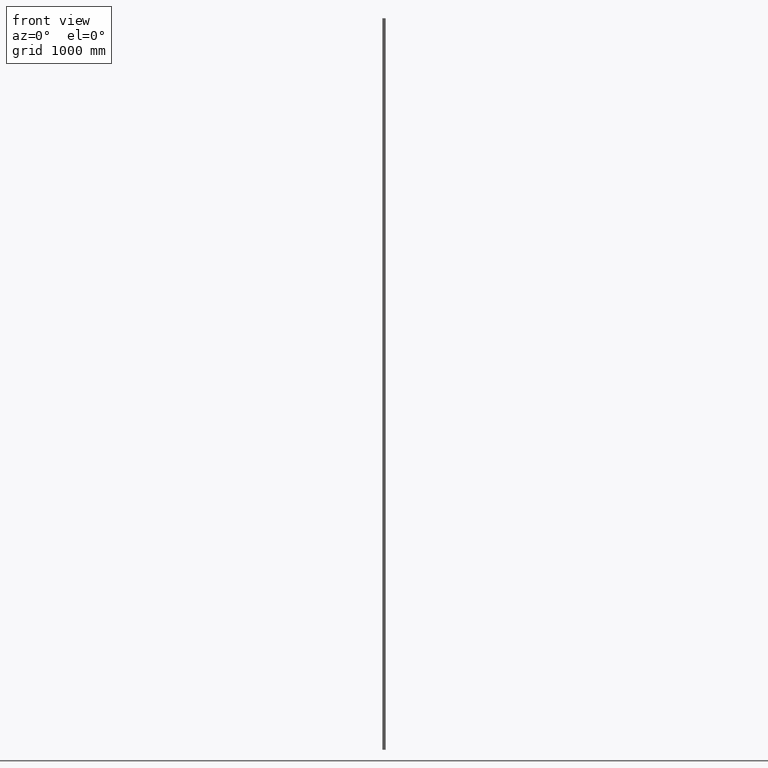
[diagram: clean part render]
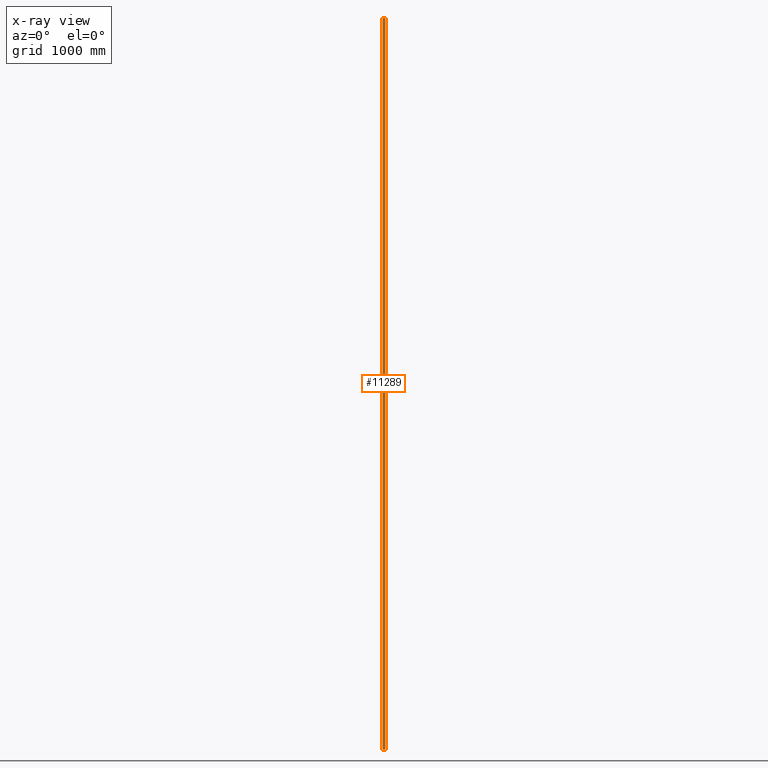
[diagram: x-ray — body ghosted, one internal face saturated and labeled with its STEP entity id]
A machine part, front view, then the same camera in x-ray: the body is ghosted and one INTERNAL B-rep face — a face not visible from any outside direction — is saturated and labeled: STEP entity #11289.
In plain terms, the highlighted planar face has unit normal (0, 1, -0).
Its self-contained STEP definition (entity closure, byte-faithful):
#21 = VECTOR ( 'NONE', #13515, 1000.000000000000000 ) ;
#23 = DIRECTION ( 'NONE',  ( -0.0000000000000000000, -0.0000000000000000000, -1.000000000000000000 ) ) ;
#67 = EDGE_CURVE ( 'NONE', #6154, #7932, #10568, .T. ) ;
#80 = VERTEX_POINT ( 'NONE', #4792 ) ;
#176 = VECTOR ( 'NONE', #13785, 1000.000000000000000 ) ;
#218 = ORIENTED_EDGE ( 'NONE', *, *, #354, .T. ) ;
#272 = EDGE_CURVE ( 'NONE', #5588, #6484, #5208, .T. ) ;
#302 = CARTESIAN_POINT ( 'NONE',  ( -11.00000000000000200, 10.00000000000000200, 3000.000000000000000 ) ) ;
#329 = EDGE_CURVE ( 'NONE', #6880, #2387, #4014, .T. ) ;
#342 = DIRECTION ( 'NONE',  ( -0.0000000000000000000, -0.0000000000000000000, -1.000000000000000000 ) ) ;
#354 = EDGE_CURVE ( 'NONE', #13557, #14191, #6994, .T. ) ;
#418 = CARTESIAN_POINT ( 'NONE',  ( -11.00000000000000200, 10.00000000000000200, 3000.000000000000000 ) ) ;
#436 = CARTESIAN_POINT ( 'NONE',  ( -11.00000000000000200, 10.00000000000000200, 5.670638757203860800 ) ) ;
#483 = ORIENTED_EDGE ( 'NONE', *, *, #8315, .T. ) ;
#486 = LINE ( 'NONE', #16308, #2094 ) ;
#490 = LINE ( 'NONE', #15507, #13660 ) ;
#521 = EDGE_CURVE ( 'NONE', #10795, #3374, #12942, .T. ) ;
#577 = VECTOR ( 'NONE', #14989, 1000.000000000000000 ) ;
#592 = ORIENTED_EDGE ( 'NONE', *, *, #272, .T. ) ;
#603 = ORIENTED_EDGE ( 'NONE', *, *, #13868, .T. ) ;
#606 = DIRECTION ( 'NONE',  ( -0.0000000000000000000, -0.0000000000000000000, -1.000000000000000000 ) ) ;
#655 = CARTESIAN_POINT ( 'NONE',  ( -11.00000000000000200, 10.00000000000000200, 3000.000000000000000 ) ) ;
#676 = DIRECTION ( 'NONE',  ( -0.0000000000000000000, -0.0000000000000000000, -1.000000000000000000 ) ) ;
#681 = DIRECTION ( 'NONE',  ( -0.0000000000000000000, -0.0000000000000000000, -1.000000000000000000 ) ) ;
#696 = VECTOR ( 'NONE', #13924, 1000.000000000000000 ) ;
#709 = VECTOR ( 'NONE', #676, 1000.000000000000000 ) ;
#715 = EDGE_CURVE ( 'NONE', #5347, #8253, #4799, .T. ) ;
#745 = CARTESIAN_POINT ( 'NONE',  ( -11.00000000000000200, 10.00000000000000200, 0.7927559264526706800 ) ) ;
#767 = LINE ( 'NONE', #15841, #13115 ) ;
#782 = ORIENTED_EDGE ( 'NONE', *, *, #11261, .T. ) ;
#816 = EDGE_CURVE ( 'NONE', #7379, #9759, #2781, .T. ) ;
#862 = VECTOR ( 'NONE', #4327, 1000.000000000000000 ) ;
#865 = ORIENTED_EDGE ( 'NONE', *, *, #13939, .T. ) ;
#899 = ORIENTED_EDGE ( 'NONE', *, *, #9029, .T. ) ;
#911 = VECTOR ( 'NONE', #13827, 1000.000000000000000 ) ;
#977 = VECTOR ( 'NONE', #5534, 1000.000000000000000 ) ;
#979 = CARTESIAN_POINT ( 'NONE',  ( -11.00000000000000200, 10.00000000000000200, -3.301537906800877700 ) ) ;
#987 = DIRECTION ( 'NONE',  ( -0.0000000000000000000, -0.0000000000000000000, -1.000000000000000000 ) ) ;
#1043 = ORIENTED_EDGE ( 'NONE', *, *, #13290, .T. ) ;
#1064 = DIRECTION ( 'NONE',  ( -0.0000000000000000000, -0.0000000000000000000, -1.000000000000000000 ) ) ;
#1080 = LINE ( 'NONE', #13594, #1446 ) ;
#1091 = CARTESIAN_POINT ( 'NONE',  ( -11.00000000000000000, 10.00000000000000200, -1.967414529914399500 ) ) ;
#1099 = LINE ( 'NONE', #8083, #6323 ) ;
#1141 = CARTESIAN_POINT ( 'NONE',  ( -11.00000000000000000, 9.999999992416315200, -8.490377042834694500 ) ) ;
#1159 = EDGE_CURVE ( 'NONE', #3374, #15918, #8598, .T. ) ;
#1205 = DIRECTION ( 'NONE',  ( -0.0000000000000000000, -0.0000000000000000000, -1.000000000000000000 ) ) ;
#1208 = CARTESIAN_POINT ( 'NONE',  ( -11.00000000000000000, 10.00000000280208400, 3.433896535137742800 ) ) ;
#1246 = VERTEX_POINT ( 'NONE', #9790 ) ;
#1277 = CARTESIAN_POINT ( 'NONE',  ( -11.00000000000000200, 10.00000000000000200, 3.302053977773944400 ) ) ;
#1283 = EDGE_CURVE ( 'NONE', #2947, #4386, #14148, .T. ) ;
#1292 = VERTEX_POINT ( 'NONE', #9618 ) ;
#1299 = VECTOR ( 'NONE', #6560, 1000.000000000000000 ) ;
#1340 = ORIENTED_EDGE ( 'NONE', *, *, #6010, .T. ) ;
#1368 = CARTESIAN_POINT ( 'NONE',  ( -11.00000000000000200, 10.00000000000000200, 3000.000000000000000 ) ) ;
#1372 = VECTOR ( 'NONE', #15347, 1000.000000000000000 ) ;
#1387 = VECTOR ( 'NONE', #3432, 1000.000000000000000 ) ;
#1400 = EDGE_CURVE ( 'NONE', #2862, #13713, #8976, .T. ) ;
#1404 = ORIENTED_EDGE ( 'NONE', *, *, #3571, .T. ) ;
#1446 = VECTOR ( 'NONE', #9735, 1000.000000000000000 ) ;
#1471 = LINE ( 'NONE', #14575, #14244 ) ;
#1505 = VECTOR ( 'NONE', #987, 1000.000000000000000 ) ;
#1512 = EDGE_CURVE ( 'NONE', #2452, #9471, #767, .T. ) ;
#1532 = VECTOR ( 'NONE', #1986, 1000.000000000000000 ) ;
#1535 = EDGE_CURVE ( 'NONE', #9944, #11347, #15745, .T. ) ;
#1549 = VERTEX_POINT ( 'NONE', #10915 ) ;
#1554 = LINE ( 'NONE', #11174, #176 ) ;
#1590 = DIRECTION ( 'NONE',  ( -0.0000000000000000000, -0.0000000000000000000, -1.000000000000000000 ) ) ;
#1626 = DIRECTION ( 'NONE',  ( -0.0000000000000000000, -0.0000000000000000000, -1.000000000000000000 ) ) ;
#1627 = VERTEX_POINT ( 'NONE', #4224 ) ;
#1723 = DIRECTION ( 'NONE',  ( -0.0000000000000000000, -0.0000000000000000000, -1.000000000000000000 ) ) ;
#1778 = CARTESIAN_POINT ( 'NONE',  ( -11.00000000000000200, 10.00000000000000200, 3000.000000000000000 ) ) ;
#1835 = CARTESIAN_POINT ( 'NONE',  ( -11.00000000000000200, 10.00000000000000200, 3000.000000000000000 ) ) ;
#1856 = ORIENTED_EDGE ( 'NONE', *, *, #2262, .T. ) ;
#1857 = CARTESIAN_POINT ( 'NONE',  ( 11.00000000000000000, 10.00000000000000000, 3000.000000000000000 ) ) ;
#1971 = LINE ( 'NONE', #4953, #577 ) ;
#1986 = DIRECTION ( 'NONE',  ( -0.0000000000000000000, -0.0000000000000000000, -1.000000000000000000 ) ) ;
#2049 = CARTESIAN_POINT ( 'NONE',  ( -11.00000000000000200, 10.00000000000000200, 3000.000000000000000 ) ) ;
#2094 = VECTOR ( 'NONE', #4762, 1000.000000000000000 ) ;
#2097 = DIRECTION ( 'NONE',  ( -0.0000000000000000000, -0.0000000000000000000, -1.000000000000000000 ) ) ;
#2114 = LINE ( 'NONE', #2238, #15493 ) ;
#2229 = VERTEX_POINT ( 'NONE', #5189 ) ;
#2238 = CARTESIAN_POINT ( 'NONE',  ( -11.00000000000000200, 10.00000000000000200, 3000.000000000000000 ) ) ;
#2262 = EDGE_CURVE ( 'NONE', #4044, #10014, #4804, .T. ) ;
#2265 = EDGE_LOOP ( 'NONE', ( #6449, #2811, #12595, #5319, #6906, #16397, #10871, #2654, #16353, #3841, #865, #218, #7523, #6090, #16083, #6166, #2583, #14540, #13190, #12993, #14163, #4977, #603, #8875, #9230, #15640, #11493, #7711, #10101, #1856, #9554, #4882, #11535, #4156, #15132, #15537, #1340, #11881, #14022, #14762, #6638, #3326, #6646, #15377, #10103, #11588, #899, #11421, #5304, #14958, #12049, #15727, #15790, #11894, #1404, #6457, #10736, #5432, #592, #483, #5458, #1043, #8556, #4786, #782, #12439 ) ) ;
#2283 = CARTESIAN_POINT ( 'NONE',  ( -11.00000000000000200, 10.00000000000000200, 3000.000000000000000 ) ) ;
#2291 = EDGE_CURVE ( 'NONE', #7229, #1627, #9166, .T. ) ;
#2387 = VERTEX_POINT ( 'NONE', #4432 ) ;
#2414 = VERTEX_POINT ( 'NONE', #3038 ) ;
#2436 = DIRECTION ( 'NONE',  ( -0.0000000000000000000, -0.0000000000000000000, -1.000000000000000000 ) ) ;
#2452 = VERTEX_POINT ( 'NONE', #11925 ) ;
#2488 = PLANE ( 'NONE',  #11719 ) ;
#2489 = EDGE_CURVE ( 'NONE', #14416, #15683, #3606, .T. ) ;
#2583 = ORIENTED_EDGE ( 'NONE', *, *, #715, .T. ) ;
#2611 = EDGE_CURVE ( 'NONE', #8833, #3993, #1971, .T. ) ;
#2632 = EDGE_CURVE ( 'NONE', #1292, #14140, #1554, .T. ) ;
#2654 = ORIENTED_EDGE ( 'NONE', *, *, #6302, .T. ) ;
#2680 = VERTEX_POINT ( 'NONE', #16301 ) ;
#2733 = EDGE_CURVE ( 'NONE', #14311, #15828, #4930, .T. ) ;
#2781 = LINE ( 'NONE', #14040, #1372 ) ;
#2789 = EDGE_CURVE ( 'NONE', #2387, #1246, #14469, .T. ) ;
#2811 = ORIENTED_EDGE ( 'NONE', *, *, #11110, .F. ) ;
#2822 = DIRECTION ( 'NONE',  ( -0.0000000000000000000, -0.0000000000000000000, -1.000000000000000000 ) ) ;
#2862 = VERTEX_POINT ( 'NONE', #745 ) ;
#2894 = LINE ( 'NONE', #15892, #15679 ) ;
#2927 = VECTOR ( 'NONE', #5201, 1000.000000000000000 ) ;
#2947 = VERTEX_POINT ( 'NONE', #14884 ) ;
#2979 = VERTEX_POINT ( 'NONE', #13685 ) ;
#3038 = CARTESIAN_POINT ( 'NONE',  ( -11.00000000000000000, 10.00000000000000900, 5.181919648641740000 ) ) ;
#3246 = VECTOR ( 'NONE', #9703, 1000.000000000000000 ) ;
#3266 = CARTESIAN_POINT ( 'NONE',  ( -11.00000000000000000, 10.00000000280207900, 2.314505509497168500 ) ) ;
#3269 = DIRECTION ( 'NONE',  ( -0.0000000000000000000, -0.0000000000000000000, -1.000000000000000000 ) ) ;
#3287 = CARTESIAN_POINT ( 'NONE',  ( -11.00000000000000000, 10.00000000000000200, 10.75293803418808400 ) ) ;
#3326 = ORIENTED_EDGE ( 'NONE', *, *, #9129, .T. ) ;
#3374 = VERTEX_POINT ( 'NONE', #16013 ) ;
#3432 = DIRECTION ( 'NONE',  ( -0.0000000000000000000, -0.0000000000000000000, -1.000000000000000000 ) ) ;
#3458 = CARTESIAN_POINT ( 'NONE',  ( -11.00000000000000000, 10.00000000000000200, -7.326923076923437300 ) ) ;
#3543 = EDGE_CURVE ( 'NONE', #5073, #10795, #490, .T. ) ;
#3571 = EDGE_CURVE ( 'NONE', #7443, #9944, #11270, .T. ) ;
#3606 = LINE ( 'NONE', #5738, #15185 ) ;
#3702 = VERTEX_POINT ( 'NONE', #13110 ) ;
#3800 = DIRECTION ( 'NONE',  ( -1.000000000000000000, 7.885106708985486600E-017, 0.0000000000000000000 ) ) ;
#3830 = DIRECTION ( 'NONE',  ( -0.0000000000000000000, -0.0000000000000000000, -1.000000000000000000 ) ) ;
#3841 = ORIENTED_EDGE ( 'NONE', *, *, #15286, .T. ) ;
#3869 = DIRECTION ( 'NONE',  ( -0.0000000000000000000, -0.0000000000000000000, -1.000000000000000000 ) ) ;
#3933 = CARTESIAN_POINT ( 'NONE',  ( 11.00000000000000000, 10.00000000000000000, -3000.000000000000000 ) ) ;
#3943 = CARTESIAN_POINT ( 'NONE',  ( -11.00000000000000200, 10.00000000000000200, 3000.000000000000000 ) ) ;
#3980 = EDGE_CURVE ( 'NONE', #1627, #8473, #1471, .T. ) ;
#3993 = VERTEX_POINT ( 'NONE', #3266 ) ;
#4014 = LINE ( 'NONE', #14347, #13765 ) ;
#4018 = EDGE_CURVE ( 'NONE', #2229, #7859, #10841, .T. ) ;
#4044 = VERTEX_POINT ( 'NONE', #1277 ) ;
#4069 = DIRECTION ( 'NONE',  ( -0.0000000000000000000, -0.0000000000000000000, -1.000000000000000000 ) ) ;
#4156 = ORIENTED_EDGE ( 'NONE', *, *, #15130, .T. ) ;
#4211 = CARTESIAN_POINT ( 'NONE',  ( -11.00000000000000200, 10.00000000000000200, 3000.000000000000000 ) ) ;
#4219 = CARTESIAN_POINT ( 'NONE',  ( -11.00000000000000000, 9.999999990482573200, 9.864725582880886600 ) ) ;
#4224 = CARTESIAN_POINT ( 'NONE',  ( -11.00000000000000000, 10.00000000000000200, 4.121394230769212200 ) ) ;
#4273 = CARTESIAN_POINT ( 'NONE',  ( -11.00000000000000200, 10.00000000000000200, 3000.000000000000000 ) ) ;
#4293 = LINE ( 'NONE', #9523, #16479 ) ;
#4327 = DIRECTION ( 'NONE',  ( -0.0000000000000000000, -0.0000000000000000000, -1.000000000000000000 ) ) ;
#4339 = CARTESIAN_POINT ( 'NONE',  ( -11.00000000000000000, 10.00000000000000200, 3.002003205128642300 ) ) ;
#4355 = LINE ( 'NONE', #7252, #8964 ) ;
#4386 = VERTEX_POINT ( 'NONE', #15270 ) ;
#4394 = DIRECTION ( 'NONE',  ( -0.0000000000000000000, -0.0000000000000000000, -1.000000000000000000 ) ) ;
#4432 = CARTESIAN_POINT ( 'NONE',  ( -11.00000000000000200, 10.00000000000000200, 6.229181438967224000 ) ) ;
#4485 = CARTESIAN_POINT ( 'NONE',  ( -11.00000000000000200, 10.00000000000000200, -3000.000000000000000 ) ) ;
#4580 = DIRECTION ( 'NONE',  ( -0.0000000000000000000, -0.0000000000000000000, -1.000000000000000000 ) ) ;
#4596 = CARTESIAN_POINT ( 'NONE',  ( -11.00000000000000200, 10.00000000000000200, 3000.000000000000000 ) ) ;
#4705 = LINE ( 'NONE', #12759, #15676 ) ;
#4736 = CARTESIAN_POINT ( 'NONE',  ( -11.00000000000000000, 10.00000000000000500, -10.60172148674717200 ) ) ;
#4762 = DIRECTION ( 'NONE',  ( -0.0000000000000000000, -0.0000000000000000000, -1.000000000000000000 ) ) ;
#4777 = EDGE_CURVE ( 'NONE', #15918, #14385, #6675, .T. ) ;
#4786 = ORIENTED_EDGE ( 'NONE', *, *, #13418, .T. ) ;
#4792 = CARTESIAN_POINT ( 'NONE',  ( -11.00000000000013300, 10.00000000000003000, -0.7474626068373763100 ) ) ;
#4799 = LINE ( 'NONE', #14608, #977 ) ;
#4804 = LINE ( 'NONE', #6680, #10748 ) ;
#4882 = ORIENTED_EDGE ( 'NONE', *, *, #2611, .T. ) ;
#4890 = VECTOR ( 'NONE', #23, 1000.000000000000000 ) ;
#4930 = LINE ( 'NONE', #6265, #1505 ) ;
#4953 = CARTESIAN_POINT ( 'NONE',  ( -11.00000000000000200, 10.00000000000000200, 3000.000000000000000 ) ) ;
#4967 = DIRECTION ( 'NONE',  ( 7.885106708985486600E-017, 1.000000000000000000, -0.0000000000000000000 ) ) ;
#4977 = ORIENTED_EDGE ( 'NONE', *, *, #2733, .T. ) ;
#4991 = CARTESIAN_POINT ( 'NONE',  ( -11.00000000000000200, 10.00000000000000200, 6.889913462366781300 ) ) ;
#5073 = VERTEX_POINT ( 'NONE', #1091 ) ;
#5109 = VECTOR ( 'NONE', #9329, 1000.000000000000000 ) ;
#5139 = CARTESIAN_POINT ( 'NONE',  ( -11.00000000000000200, 10.00000000000000200, 3000.000000000000000 ) ) ;
#5155 = LINE ( 'NONE', #13915, #10705 ) ;
#5189 = CARTESIAN_POINT ( 'NONE',  ( -11.00000000000000000, 9.999999999999927200, 7.587134794171227300 ) ) ;
#5201 = DIRECTION ( 'NONE',  ( -0.0000000000000000000, -0.0000000000000000000, -1.000000000000000000 ) ) ;
#5208 = LINE ( 'NONE', #11592, #6591 ) ;
#5304 = ORIENTED_EDGE ( 'NONE', *, *, #1283, .T. ) ;
#5316 = VECTOR ( 'NONE', #3869, 1000.000000000000000 ) ;
#5319 = ORIENTED_EDGE ( 'NONE', *, *, #12162, .T. ) ;
#5347 = VERTEX_POINT ( 'NONE', #5801 ) ;
#5356 = FACE_OUTER_BOUND ( 'NONE', #2265, .T. ) ;
#5432 = ORIENTED_EDGE ( 'NONE', *, *, #9737, .T. ) ;
#5458 = ORIENTED_EDGE ( 'NONE', *, *, #15881, .T. ) ;
#5482 = VECTOR ( 'NONE', #7957, 1000.000000000000000 ) ;
#5534 = DIRECTION ( 'NONE',  ( -0.0000000000000000000, -0.0000000000000000000, -1.000000000000000000 ) ) ;
#5588 = VERTEX_POINT ( 'NONE', #14976 ) ;
#5690 = CARTESIAN_POINT ( 'NONE',  ( -11.00000000000000200, 10.00000000000000200, 3000.000000000000000 ) ) ;
#5705 = LINE ( 'NONE', #13001, #14257 ) ;
#5715 = LINE ( 'NONE', #13892, #11470 ) ;
#5716 = VECTOR ( 'NONE', #4069, 1000.000000000000000 ) ;
#5738 = CARTESIAN_POINT ( 'NONE',  ( -11.00000000000000200, 10.00000000000000200, 3000.000000000000000 ) ) ;
#5801 = CARTESIAN_POINT ( 'NONE',  ( -11.00000000000000000, 10.00000000000000200, 7.089476495726973600 ) ) ;
#5905 = LINE ( 'NONE', #7569, #14666 ) ;
#5948 = VERTEX_POINT ( 'NONE', #11500 ) ;
#6010 = EDGE_CURVE ( 'NONE', #13713, #14278, #13229, .T. ) ;
#6033 = EDGE_CURVE ( 'NONE', #7859, #5347, #6291, .T. ) ;
#6090 = ORIENTED_EDGE ( 'NONE', *, *, #15340, .T. ) ;
#6118 = DIRECTION ( 'NONE',  ( -0.0000000000000000000, -0.0000000000000000000, -1.000000000000000000 ) ) ;
#6124 = DIRECTION ( 'NONE',  ( -0.0000000000000000000, -0.0000000000000000000, -1.000000000000000000 ) ) ;
#6154 = VERTEX_POINT ( 'NONE', #7005 ) ;
#6166 = ORIENTED_EDGE ( 'NONE', *, *, #6033, .T. ) ;
#6265 = CARTESIAN_POINT ( 'NONE',  ( -11.00000000000000200, 10.00000000000000200, 3000.000000000000000 ) ) ;
#6284 = DIRECTION ( 'NONE',  ( -0.0000000000000000000, -0.0000000000000000000, -1.000000000000000000 ) ) ;
#6291 = LINE ( 'NONE', #15706, #862 ) ;
#6302 = EDGE_CURVE ( 'NONE', #6462, #6154, #7718, .T. ) ;
#6314 = CARTESIAN_POINT ( 'NONE',  ( -11.00000000000000200, 9.999999990799702600, 5.333908123497178800 ) ) ;
#6323 = VECTOR ( 'NONE', #10428, 1000.000000000000000 ) ;
#6432 = LINE ( 'NONE', #12488, #14818 ) ;
#6449 = ORIENTED_EDGE ( 'NONE', *, *, #16067, .T. ) ;
#6457 = ORIENTED_EDGE ( 'NONE', *, *, #1535, .T. ) ;
#6462 = VERTEX_POINT ( 'NONE', #7567 ) ;
#6484 = VERTEX_POINT ( 'NONE', #9061 ) ;
#6499 = LINE ( 'NONE', #6788, #5482 ) ;
#6509 = LINE ( 'NONE', #6947, #14476 ) ;
#6511 = LINE ( 'NONE', #7541, #696 ) ;
#6524 = LINE ( 'NONE', #5690, #12869 ) ;
#6560 = DIRECTION ( 'NONE',  ( -0.0000000000000000000, -0.0000000000000000000, -1.000000000000000000 ) ) ;
#6591 = VECTOR ( 'NONE', #11703, 1000.000000000000000 ) ;
#6621 = CARTESIAN_POINT ( 'NONE',  ( -11.00000000000000000, 10.00000000000000900, 8.150001913598892100 ) ) ;
#6624 = DIRECTION ( 'NONE',  ( -0.0000000000000000000, -0.0000000000000000000, -1.000000000000000000 ) ) ;
#6638 = ORIENTED_EDGE ( 'NONE', *, *, #16312, .T. ) ;
#6646 = ORIENTED_EDGE ( 'NONE', *, *, #3543, .T. ) ;
#6675 = LINE ( 'NONE', #418, #8470 ) ;
#6680 = CARTESIAN_POINT ( 'NONE',  ( -11.00000000000000200, 10.00000000000000200, 3000.000000000000000 ) ) ;
#6681 = VERTEX_POINT ( 'NONE', #13017 ) ;
#6700 = EDGE_CURVE ( 'NONE', #14251, #12636, #10109, .T. ) ;
#6756 = EDGE_CURVE ( 'NONE', #10014, #8833, #1099, .T. ) ;
#6788 = CARTESIAN_POINT ( 'NONE',  ( -11.00000000000000200, 10.00000000000000200, -3000.000000000000000 ) ) ;
#6853 = CARTESIAN_POINT ( 'NONE',  ( -11.00000000000000200, 10.00000000000000200, 8.615918803418942700 ) ) ;
#6878 = CARTESIAN_POINT ( 'NONE',  ( -11.00000000000000200, 10.00000000000000200, 3000.000000000000000 ) ) ;
#6880 = VERTEX_POINT ( 'NONE', #7262 ) ;
#6906 = ORIENTED_EDGE ( 'NONE', *, *, #816, .T. ) ;
#6947 = CARTESIAN_POINT ( 'NONE',  ( -11.00000000000000200, 10.00000000000000200, 3000.000000000000000 ) ) ;
#6973 = CARTESIAN_POINT ( 'NONE',  ( -11.00000000000000000, 9.999999999999987600, -10.47356264641149400 ) ) ;
#6980 = VECTOR ( 'NONE', #13476, 1000.000000000000000 ) ;
#6994 = LINE ( 'NONE', #9399, #1387 ) ;
#7005 = CARTESIAN_POINT ( 'NONE',  ( -10.99999999999999800, 10.00000000000000000, 9.161694076006352100 ) ) ;
#7072 = EDGE_CURVE ( 'NONE', #12432, #6462, #6511, .T. ) ;
#7202 = EDGE_CURVE ( 'NONE', #11347, #8583, #15105, .T. ) ;
#7229 = VERTEX_POINT ( 'NONE', #9478 ) ;
#7236 = CARTESIAN_POINT ( 'NONE',  ( -11.00000000000000200, 10.00000000000000200, -5.868322649572821300 ) ) ;
#7252 = CARTESIAN_POINT ( 'NONE',  ( 11.00000000000000000, 10.00000000000000000, 3000.000000000000000 ) ) ;
#7262 = CARTESIAN_POINT ( 'NONE',  ( -11.00000000000000200, 10.00000000084141000, 6.459503861467008600 ) ) ;
#7327 = VECTOR ( 'NONE', #1064, 1000.000000000000000 ) ;
#7338 = VECTOR ( 'NONE', #3269, 1000.000000000000000 ) ;
#7379 = VERTEX_POINT ( 'NONE', #3287 ) ;
#7422 = DIRECTION ( 'NONE',  ( -0.0000000000000000000, -0.0000000000000000000, -1.000000000000000000 ) ) ;
#7441 = VERTEX_POINT ( 'NONE', #4736 ) ;
#7443 = VERTEX_POINT ( 'NONE', #3458 ) ;
#7520 = VECTOR ( 'NONE', #11882, 1000.000000000000000 ) ;
#7523 = ORIENTED_EDGE ( 'NONE', *, *, #15687, .T. ) ;
#7541 = CARTESIAN_POINT ( 'NONE',  ( -11.00000000000000200, 10.00000000000000200, 3000.000000000000000 ) ) ;
#7548 = EDGE_CURVE ( 'NONE', #2414, #7763, #11266, .T. ) ;
#7567 = CARTESIAN_POINT ( 'NONE',  ( -11.00000000000000200, 10.00000000000000200, 9.717604625021802900 ) ) ;
#7569 = CARTESIAN_POINT ( 'NONE',  ( -11.00000000000000200, 10.00000000000000200, 3000.000000000000000 ) ) ;
#7588 = VECTOR ( 'NONE', #14904, 1000.000000000000000 ) ;
#7711 = ORIENTED_EDGE ( 'NONE', *, *, #15471, .T. ) ;
#7718 = LINE ( 'NONE', #15155, #7327 ) ;
#7720 = VECTOR ( 'NONE', #606, 1000.000000000000000 ) ;
#7737 = VERTEX_POINT ( 'NONE', #3933 ) ;
#7763 = VERTEX_POINT ( 'NONE', #16398 ) ;
#7859 = VERTEX_POINT ( 'NONE', #11609 ) ;
#7884 = DIRECTION ( 'NONE',  ( -0.0000000000000000000, -0.0000000000000000000, -1.000000000000000000 ) ) ;
#7890 = VECTOR ( 'NONE', #2822, 1000.000000000000000 ) ;
#7932 = VERTEX_POINT ( 'NONE', #10308 ) ;
#7957 = DIRECTION ( 'NONE',  ( 1.000000000000000000, -7.885106708985487800E-017, 0.0000000000000000000 ) ) ;
#7988 = EDGE_CURVE ( 'NONE', #8253, #6880, #9236, .T. ) ;
#8029 = CARTESIAN_POINT ( 'NONE',  ( -11.00000000000000200, 10.00000000000000200, 3000.000000000000000 ) ) ;
#8040 = EDGE_CURVE ( 'NONE', #14203, #7443, #15615, .T. ) ;
#8083 = CARTESIAN_POINT ( 'NONE',  ( -11.00000000000000200, 10.00000000000000200, 3000.000000000000000 ) ) ;
#8094 = LINE ( 'NONE', #4273, #1299 ) ;
#8098 = LINE ( 'NONE', #16463, #15469 ) ;
#8253 = VERTEX_POINT ( 'NONE', #4991 ) ;
#8315 = EDGE_CURVE ( 'NONE', #6484, #1549, #6432, .T. ) ;
#8470 = VECTOR ( 'NONE', #11947, 1000.000000000000000 ) ;
#8473 = VERTEX_POINT ( 'NONE', #13996 ) ;
#8556 = ORIENTED_EDGE ( 'NONE', *, *, #2489, .T. ) ;
#8583 = VERTEX_POINT ( 'NONE', #10691 ) ;
#8598 = LINE ( 'NONE', #1835, #11162 ) ;
#8610 = VECTOR ( 'NONE', #9933, 1000.000000000000000 ) ;
#8674 = CARTESIAN_POINT ( 'NONE',  ( -11.00000000000000200, 10.00000000000000200, 3000.000000000000000 ) ) ;
#8720 = LINE ( 'NONE', #15303, #5316 ) ;
#8728 = VECTOR ( 'NONE', #11364, 1000.000000000000000 ) ;
#8770 = EDGE_CURVE ( 'NONE', #9759, #12432, #15604, .T. ) ;
#8782 = DIRECTION ( 'NONE',  ( -0.0000000000000000000, -0.0000000000000000000, -1.000000000000000000 ) ) ;
#8833 = VERTEX_POINT ( 'NONE', #9124 ) ;
#8875 = ORIENTED_EDGE ( 'NONE', *, *, #7548, .T. ) ;
#8921 = CARTESIAN_POINT ( 'NONE',  ( -11.00000000000000000, 10.00000000972986500, 0.4393177880119048000 ) ) ;
#8964 = VECTOR ( 'NONE', #2097, 1000.000000000000000 ) ;
#8976 = LINE ( 'NONE', #16529, #11149 ) ;
#9029 = EDGE_CURVE ( 'NONE', #14385, #10763, #1080, .T. ) ;
#9031 = CARTESIAN_POINT ( 'NONE',  ( -11.00000000000000200, 10.00000000000000200, 3000.000000000000000 ) ) ;
#9061 = CARTESIAN_POINT ( 'NONE',  ( -11.00000000000000200, 10.00000000000000200, -9.564112329727869600 ) ) ;
#9111 = LINE ( 'NONE', #2283, #8728 ) ;
#9124 = CARTESIAN_POINT ( 'NONE',  ( -11.00000000000000200, 10.00000000000000200, 2.788175278288562700 ) ) ;
#9129 = EDGE_CURVE ( 'NONE', #6681, #5073, #14486, .T. ) ;
#9141 = LINE ( 'NONE', #15199, #2927 ) ;
#9166 = LINE ( 'NONE', #9031, #11165 ) ;
#9169 = EDGE_CURVE ( 'NONE', #7763, #7229, #8720, .T. ) ;
#9176 = CARTESIAN_POINT ( 'NONE',  ( -10.99999999999999600, 9.999999999999426200, -0.3368490022013955200 ) ) ;
#9197 = CARTESIAN_POINT ( 'NONE',  ( -11.00000000000000200, 10.00000000000000200, 3000.000000000000000 ) ) ;
#9201 = VECTOR ( 'NONE', #15257, 1000.000000000000000 ) ;
#9230 = ORIENTED_EDGE ( 'NONE', *, *, #9169, .T. ) ;
#9236 = LINE ( 'NONE', #302, #3246 ) ;
#9329 = DIRECTION ( 'NONE',  ( -0.0000000000000000000, -0.0000000000000000000, -1.000000000000000000 ) ) ;
#9383 = EDGE_CURVE ( 'NONE', #14140, #16538, #5705, .T. ) ;
#9399 = CARTESIAN_POINT ( 'NONE',  ( -11.00000000000000200, 10.00000000000000200, 3000.000000000000000 ) ) ;
#9458 = CARTESIAN_POINT ( 'NONE',  ( -11.00000000000000200, 10.00000000000000200, 3000.000000000000000 ) ) ;
#9471 = VERTEX_POINT ( 'NONE', #1857 ) ;
#9478 = CARTESIAN_POINT ( 'NONE',  ( -11.00000000000000200, 10.00000000000000200, 4.392761752137541700 ) ) ;
#9506 = LINE ( 'NONE', #1778, #12477 ) ;
#9523 = CARTESIAN_POINT ( 'NONE',  ( -11.00000000000000200, 10.00000000000000200, 3000.000000000000000 ) ) ;
#9554 = ORIENTED_EDGE ( 'NONE', *, *, #6756, .T. ) ;
#9618 = CARTESIAN_POINT ( 'NONE',  ( -11.00000000000000000, 10.00000000000000200, -5.749599358974347900 ) ) ;
#9703 = DIRECTION ( 'NONE',  ( -0.0000000000000000000, -0.0000000000000000000, -1.000000000000000000 ) ) ;
#9735 = DIRECTION ( 'NONE',  ( -0.0000000000000000000, -0.0000000000000000000, -1.000000000000000000 ) ) ;
#9737 = EDGE_CURVE ( 'NONE', #8583, #5588, #16033, .T. ) ;
#9759 = VERTEX_POINT ( 'NONE', #16492 ) ;
#9790 = CARTESIAN_POINT ( 'NONE',  ( -10.99999999999999600, 9.999999990752490600, 5.794928755456092900 ) ) ;
#9933 = DIRECTION ( 'NONE',  ( -0.0000000000000000000, -0.0000000000000000000, -1.000000000000000000 ) ) ;
#9939 = CARTESIAN_POINT ( 'NONE',  ( -11.00000000000000200, 10.00000000000000200, -9.825095999953958900 ) ) ;
#9944 = VERTEX_POINT ( 'NONE', #10786 ) ;
#10014 = VERTEX_POINT ( 'NONE', #4339 ) ;
#10101 = ORIENTED_EDGE ( 'NONE', *, *, #13223, .T. ) ;
#10103 = ORIENTED_EDGE ( 'NONE', *, *, #1159, .T. ) ;
#10109 = LINE ( 'NONE', #8029, #5109 ) ;
#10300 = VECTOR ( 'NONE', #4580, 1000.000000000000000 ) ;
#10308 = CARTESIAN_POINT ( 'NONE',  ( -11.00000000000000400, 9.999999991491995000, 9.030514278682364400 ) ) ;
#10428 = DIRECTION ( 'NONE',  ( -0.0000000000000000000, -0.0000000000000000000, -1.000000000000000000 ) ) ;
#10463 = DIRECTION ( 'NONE',  ( -0.0000000000000000000, -0.0000000000000000000, -1.000000000000000000 ) ) ;
#10473 = VECTOR ( 'NONE', #16547, 1000.000000000000000 ) ;
#10501 = LINE ( 'NONE', #10885, #7338 ) ;
#10545 = EDGE_CURVE ( 'NONE', #3993, #3702, #9111, .T. ) ;
#10568 = LINE ( 'NONE', #12512, #8610 ) ;
#10575 = CARTESIAN_POINT ( 'NONE',  ( -11.00000000000000200, 10.00000000000000200, 3000.000000000000000 ) ) ;
#10594 = CARTESIAN_POINT ( 'NONE',  ( -11.00000000000000000, 10.00000000000985900, 0.3203758507136086300 ) ) ;
#10653 = VECTOR ( 'NONE', #13540, 1000.000000000000000 ) ;
#10681 = VECTOR ( 'NONE', #1723, 1000.000000000000000 ) ;
#10691 = CARTESIAN_POINT ( 'NONE',  ( -11.00000000000000200, 10.00000000000000200, -8.872524828335670600 ) ) ;
#10702 = DIRECTION ( 'NONE',  ( -0.0000000000000000000, -0.0000000000000000000, -1.000000000000000000 ) ) ;
#10705 = VECTOR ( 'NONE', #7422, 1000.000000000000000 ) ;
#10736 = ORIENTED_EDGE ( 'NONE', *, *, #7202, .T. ) ;
#10748 = VECTOR ( 'NONE', #12887, 1000.000000000000000 ) ;
#10763 = VERTEX_POINT ( 'NONE', #12787 ) ;
#10786 = CARTESIAN_POINT ( 'NONE',  ( -11.00000000000000000, 10.00000000000000200, -7.445646367521728600 ) ) ;
#10795 = VERTEX_POINT ( 'NONE', #12387 ) ;
#10841 = LINE ( 'NONE', #10989, #10653 ) ;
#10871 = ORIENTED_EDGE ( 'NONE', *, *, #7072, .T. ) ;
#10885 = CARTESIAN_POINT ( 'NONE',  ( -11.00000000000000200, 10.00000000000000200, 3000.000000000000000 ) ) ;
#10915 = CARTESIAN_POINT ( 'NONE',  ( -11.00000000000000000, 9.999999999999953800, -9.693669120593048300 ) ) ;
#10972 = CARTESIAN_POINT ( 'NONE',  ( -11.00000000000000200, 10.00000000000000200, 3000.000000000000000 ) ) ;
#10989 = CARTESIAN_POINT ( 'NONE',  ( -11.00000000000000200, 10.00000000000000200, 3000.000000000000000 ) ) ;
#11110 = EDGE_CURVE ( 'NONE', #9471, #7737, #4355, .T. ) ;
#11149 = VECTOR ( 'NONE', #14106, 1000.000000000000000 ) ;
#11162 = VECTOR ( 'NONE', #14453, 1000.000000000000000 ) ;
#11165 = VECTOR ( 'NONE', #6624, 1000.000000000000000 ) ;
#11174 = CARTESIAN_POINT ( 'NONE',  ( -11.00000000000000200, 10.00000000000000200, 3000.000000000000000 ) ) ;
#11261 = EDGE_CURVE ( 'NONE', #7441, #2680, #5155, .T. ) ;
#11266 = LINE ( 'NONE', #12513, #10473 ) ;
#11270 = LINE ( 'NONE', #1368, #7890 ) ;
#11286 = VECTOR ( 'NONE', #8782, 1000.000000000000000 ) ;
#11289 = ADVANCED_FACE ( 'NONE', ( #5356 ), #2488, .F. ) ;
#11347 = VERTEX_POINT ( 'NONE', #1141 ) ;
#11364 = DIRECTION ( 'NONE',  ( -0.0000000000000000000, -0.0000000000000000000, -1.000000000000000000 ) ) ;
#11396 = CARTESIAN_POINT ( 'NONE',  ( -11.00000000000000200, 10.00000000000000200, 3000.000000000000000 ) ) ;
#11421 = ORIENTED_EDGE ( 'NONE', *, *, #14201, .T. ) ;
#11470 = VECTOR ( 'NONE', #6284, 1000.000000000000000 ) ;
#11474 = LINE ( 'NONE', #13079, #10681 ) ;
#11493 = ORIENTED_EDGE ( 'NONE', *, *, #3980, .T. ) ;
#11500 = CARTESIAN_POINT ( 'NONE',  ( -11.00000000000000000, 10.00000000000000200, 8.734642094017106100 ) ) ;
#11511 = DIRECTION ( 'NONE',  ( -0.0000000000000000000, -0.0000000000000000000, -1.000000000000000000 ) ) ;
#11535 = ORIENTED_EDGE ( 'NONE', *, *, #10545, .T. ) ;
#11588 = ORIENTED_EDGE ( 'NONE', *, *, #4777, .T. ) ;
#11592 = CARTESIAN_POINT ( 'NONE',  ( -11.00000000000000200, 10.00000000000000200, 3000.000000000000000 ) ) ;
#11609 = CARTESIAN_POINT ( 'NONE',  ( -11.00000000000000200, 10.00000000000000200, 7.360844017094692000 ) ) ;
#11700 = DIRECTION ( 'NONE',  ( -0.0000000000000000000, -0.0000000000000000000, -1.000000000000000000 ) ) ;
#11703 = DIRECTION ( 'NONE',  ( -0.0000000000000000000, -0.0000000000000000000, -1.000000000000000000 ) ) ;
#11719 = AXIS2_PLACEMENT_3D ( 'NONE', #11396, #4967, #3800 ) ;
#11796 = CARTESIAN_POINT ( 'NONE',  ( -11.00000000000000000, 10.00000000000001100, -4.612847222222817400 ) ) ;
#11842 = VECTOR ( 'NONE', #2436, 1000.000000000000000 ) ;
#11873 = LINE ( 'NONE', #9458, #709 ) ;
#11881 = ORIENTED_EDGE ( 'NONE', *, *, #14770, .T. ) ;
#11882 = DIRECTION ( 'NONE',  ( -0.0000000000000000000, -0.0000000000000000000, -1.000000000000000000 ) ) ;
#11894 = ORIENTED_EDGE ( 'NONE', *, *, #8040, .T. ) ;
#11923 = VERTEX_POINT ( 'NONE', #1208 ) ;
#11925 = CARTESIAN_POINT ( 'NONE',  ( -11.00000000000000200, 10.00000000000000200, 3000.000000000000000 ) ) ;
#11946 = DIRECTION ( 'NONE',  ( -0.0000000000000000000, -0.0000000000000000000, -1.000000000000000000 ) ) ;
#11947 = DIRECTION ( 'NONE',  ( -0.0000000000000000000, -0.0000000000000000000, -1.000000000000000000 ) ) ;
#12049 = ORIENTED_EDGE ( 'NONE', *, *, #2632, .T. ) ;
#12162 = EDGE_CURVE ( 'NONE', #2452, #7379, #12506, .T. ) ;
#12249 = DIRECTION ( 'NONE',  ( 1.000000000000000000, -7.885106708985487800E-017, 0.0000000000000000000 ) ) ;
#12327 = CARTESIAN_POINT ( 'NONE',  ( -11.00000000000000200, 10.00000000000000200, 3000.000000000000000 ) ) ;
#12387 = CARTESIAN_POINT ( 'NONE',  ( -11.00000000000000200, 10.00000000000000200, -2.283909701672470800 ) ) ;
#12391 = VERTEX_POINT ( 'NONE', #6621 ) ;
#12412 = VECTOR ( 'NONE', #11700, 1000.000000000000000 ) ;
#12432 = VERTEX_POINT ( 'NONE', #4219 ) ;
#12439 = ORIENTED_EDGE ( 'NONE', *, *, #12584, .T. ) ;
#12457 = LINE ( 'NONE', #655, #10300 ) ;
#12477 = VECTOR ( 'NONE', #10702, 1000.000000000000000 ) ;
#12488 = CARTESIAN_POINT ( 'NONE',  ( -11.00000000000000200, 10.00000000000000200, 3000.000000000000000 ) ) ;
#12506 = LINE ( 'NONE', #16003, #1532 ) ;
#12512 = CARTESIAN_POINT ( 'NONE',  ( -11.00000000000000200, 10.00000000000000200, 3000.000000000000000 ) ) ;
#12513 = CARTESIAN_POINT ( 'NONE',  ( -11.00000000000000200, 10.00000000000000200, 3000.000000000000000 ) ) ;
#12550 = VERTEX_POINT ( 'NONE', #4485 ) ;
#12584 = EDGE_CURVE ( 'NONE', #2680, #12550, #9141, .T. ) ;
#12595 = ORIENTED_EDGE ( 'NONE', *, *, #1512, .F. ) ;
#12636 = VERTEX_POINT ( 'NONE', #16410 ) ;
#12657 = CARTESIAN_POINT ( 'NONE',  ( -11.00000000000000000, 9.999999990799706100, 8.301990388454324700 ) ) ;
#12759 = CARTESIAN_POINT ( 'NONE',  ( -11.00000000000000200, 10.00000000000000200, 3000.000000000000000 ) ) ;
#12787 = CARTESIAN_POINT ( 'NONE',  ( -11.00000000000000000, 10.00000000000006000, -4.742416452892328500 ) ) ;
#12817 = EDGE_CURVE ( 'NONE', #12636, #80, #6524, .T. ) ;
#12869 = VECTOR ( 'NONE', #4394, 1000.000000000000000 ) ;
#12887 = DIRECTION ( 'NONE',  ( -0.0000000000000000000, -0.0000000000000000000, -1.000000000000000000 ) ) ;
#12942 = LINE ( 'NONE', #12327, #9201 ) ;
#12993 = ORIENTED_EDGE ( 'NONE', *, *, #2789, .T. ) ;
#13001 = CARTESIAN_POINT ( 'NONE',  ( -11.00000000000000200, 10.00000000000000200, 3000.000000000000000 ) ) ;
#13017 = CARTESIAN_POINT ( 'NONE',  ( -11.00000000000000200, 10.00000000000000200, -1.334384499162233300 ) ) ;
#13022 = VERTEX_POINT ( 'NONE', #9939 ) ;
#13079 = CARTESIAN_POINT ( 'NONE',  ( -11.00000000000000200, 10.00000000000000200, 3000.000000000000000 ) ) ;
#13110 = CARTESIAN_POINT ( 'NONE',  ( -11.00000000000000200, 10.00000000000000200, 2.182662952133540600 ) ) ;
#13115 = VECTOR ( 'NONE', #12249, 1000.000000000000000 ) ;
#13190 = ORIENTED_EDGE ( 'NONE', *, *, #329, .T. ) ;
#13223 = EDGE_CURVE ( 'NONE', #11923, #4044, #11873, .T. ) ;
#13229 = LINE ( 'NONE', #9197, #14876 ) ;
#13242 = EDGE_CURVE ( 'NONE', #16538, #14203, #10501, .T. ) ;
#13290 = EDGE_CURVE ( 'NONE', #13022, #14416, #6509, .T. ) ;
#13418 = EDGE_CURVE ( 'NONE', #15683, #7441, #5715, .T. ) ;
#13424 = DIRECTION ( 'NONE',  ( -0.0000000000000000000, -0.0000000000000000000, -1.000000000000000000 ) ) ;
#13476 = DIRECTION ( 'NONE',  ( -0.0000000000000000000, -0.0000000000000000000, -1.000000000000000000 ) ) ;
#13515 = DIRECTION ( 'NONE',  ( -0.0000000000000000000, -0.0000000000000000000, -1.000000000000000000 ) ) ;
#13540 = DIRECTION ( 'NONE',  ( -0.0000000000000000000, -0.0000000000000000000, -1.000000000000000000 ) ) ;
#13557 = VERTEX_POINT ( 'NONE', #6853 ) ;
#13594 = CARTESIAN_POINT ( 'NONE',  ( -11.00000000000000200, 10.00000000000000200, 3000.000000000000000 ) ) ;
#13657 = LINE ( 'NONE', #15281, #11842 ) ;
#13660 = VECTOR ( 'NONE', #11511, 1000.000000000000000 ) ;
#13685 = CARTESIAN_POINT ( 'NONE',  ( -11.00000000000000000, 10.00000000316013700, 1.221058530776795200 ) ) ;
#13713 = VERTEX_POINT ( 'NONE', #8921 ) ;
#13765 = VECTOR ( 'NONE', #342, 1000.000000000000000 ) ;
#13785 = DIRECTION ( 'NONE',  ( -0.0000000000000000000, -0.0000000000000000000, -1.000000000000000000 ) ) ;
#13786 = CARTESIAN_POINT ( 'NONE',  ( -11.00000000000000200, 10.00000000000000200, -6.716346153846419800 ) ) ;
#13827 = DIRECTION ( 'NONE',  ( -0.0000000000000000000, -0.0000000000000000000, -1.000000000000000000 ) ) ;
#13868 = EDGE_CURVE ( 'NONE', #15828, #2414, #8094, .T. ) ;
#13892 = CARTESIAN_POINT ( 'NONE',  ( -11.00000000000000200, 10.00000000000000200, 3000.000000000000000 ) ) ;
#13915 = CARTESIAN_POINT ( 'NONE',  ( -11.00000000000000200, 10.00000000000000200, 3000.000000000000000 ) ) ;
#13924 = DIRECTION ( 'NONE',  ( -0.0000000000000000000, -0.0000000000000000000, -1.000000000000000000 ) ) ;
#13939 = EDGE_CURVE ( 'NONE', #5948, #13557, #4293, .T. ) ;
#13996 = CARTESIAN_POINT ( 'NONE',  ( -11.00000000000000200, 10.00000000000000200, 3.907566303929410600 ) ) ;
#14022 = ORIENTED_EDGE ( 'NONE', *, *, #6700, .T. ) ;
#14040 = CARTESIAN_POINT ( 'NONE',  ( -11.00000000000000200, 10.00000000000000200, 3000.000000000000000 ) ) ;
#14106 = DIRECTION ( 'NONE',  ( -0.0000000000000000000, -0.0000000000000000000, -1.000000000000000000 ) ) ;
#14140 = VERTEX_POINT ( 'NONE', #7236 ) ;
#14148 = LINE ( 'NONE', #4596, #6980 ) ;
#14163 = ORIENTED_EDGE ( 'NONE', *, *, #15554, .T. ) ;
#14191 = VERTEX_POINT ( 'NONE', #12657 ) ;
#14201 = EDGE_CURVE ( 'NONE', #10763, #2947, #4705, .T. ) ;
#14203 = VERTEX_POINT ( 'NONE', #13786 ) ;
#14244 = VECTOR ( 'NONE', #1626, 1000.000000000000000 ) ;
#14251 = VERTEX_POINT ( 'NONE', #9176 ) ;
#14257 = VECTOR ( 'NONE', #1590, 1000.000000000000000 ) ;
#14278 = VERTEX_POINT ( 'NONE', #10594 ) ;
#14311 = VERTEX_POINT ( 'NONE', #436 ) ;
#14347 = CARTESIAN_POINT ( 'NONE',  ( -11.00000000000000200, 10.00000000000000200, 3000.000000000000000 ) ) ;
#14384 = CARTESIAN_POINT ( 'NONE',  ( -11.00000000000000000, 10.00000000000000200, -10.34027725611036200 ) ) ;
#14385 = VERTEX_POINT ( 'NONE', #11796 ) ;
#14416 = VERTEX_POINT ( 'NONE', #14384 ) ;
#14453 = DIRECTION ( 'NONE',  ( -0.0000000000000000000, -0.0000000000000000000, -1.000000000000000000 ) ) ;
#14469 = LINE ( 'NONE', #10575, #7520 ) ;
#14476 = VECTOR ( 'NONE', #13424, 1000.000000000000000 ) ;
#14486 = LINE ( 'NONE', #8674, #911 ) ;
#14540 = ORIENTED_EDGE ( 'NONE', *, *, #7988, .T. ) ;
#14575 = CARTESIAN_POINT ( 'NONE',  ( -11.00000000000000200, 10.00000000000000200, 3000.000000000000000 ) ) ;
#14608 = CARTESIAN_POINT ( 'NONE',  ( -11.00000000000000200, 10.00000000000000200, 3000.000000000000000 ) ) ;
#14666 = VECTOR ( 'NONE', #3830, 1000.000000000000000 ) ;
#14684 = EDGE_CURVE ( 'NONE', #2979, #2862, #12457, .T. ) ;
#14762 = ORIENTED_EDGE ( 'NONE', *, *, #12817, .T. ) ;
#14770 = EDGE_CURVE ( 'NONE', #14278, #14251, #8098, .T. ) ;
#14818 = VECTOR ( 'NONE', #6118, 1000.000000000000000 ) ;
#14876 = VECTOR ( 'NONE', #10463, 1000.000000000000000 ) ;
#14884 = CARTESIAN_POINT ( 'NONE',  ( -11.00000000000000000, 10.00000000000002700, -5.037159559078650900 ) ) ;
#14904 = DIRECTION ( 'NONE',  ( -0.0000000000000000000, -0.0000000000000000000, -1.000000000000000000 ) ) ;
#14908 = LINE ( 'NONE', #6878, #7720 ) ;
#14958 = ORIENTED_EDGE ( 'NONE', *, *, #15242, .T. ) ;
#14976 = CARTESIAN_POINT ( 'NONE',  ( -11.00000000000000000, 10.00000000000001200, -9.444227430555955000 ) ) ;
#14989 = DIRECTION ( 'NONE',  ( -0.0000000000000000000, -0.0000000000000000000, -1.000000000000000000 ) ) ;
#15086 = CARTESIAN_POINT ( 'NONE',  ( -11.00000000000000200, 10.00000000000000200, 3000.000000000000000 ) ) ;
#15105 = LINE ( 'NONE', #5139, #5716 ) ;
#15130 = EDGE_CURVE ( 'NONE', #3702, #2979, #2114, .T. ) ;
#15132 = ORIENTED_EDGE ( 'NONE', *, *, #14684, .T. ) ;
#15155 = CARTESIAN_POINT ( 'NONE',  ( -11.00000000000000200, 10.00000000000000200, 3000.000000000000000 ) ) ;
#15185 = VECTOR ( 'NONE', #15981, 1000.000000000000000 ) ;
#15199 = CARTESIAN_POINT ( 'NONE',  ( -11.00000000000000200, 10.00000000000000200, 3000.000000000000000 ) ) ;
#15242 = EDGE_CURVE ( 'NONE', #4386, #1292, #11474, .T. ) ;
#15257 = DIRECTION ( 'NONE',  ( -0.0000000000000000000, -0.0000000000000000000, -1.000000000000000000 ) ) ;
#15270 = CARTESIAN_POINT ( 'NONE',  ( -11.00000000000000200, 10.00000000000000200, -5.165998931623949600 ) ) ;
#15281 = CARTESIAN_POINT ( 'NONE',  ( -11.00000000000000200, 10.00000000000000200, 3000.000000000000000 ) ) ;
#15286 = EDGE_CURVE ( 'NONE', #7932, #5948, #14908, .T. ) ;
#15303 = CARTESIAN_POINT ( 'NONE',  ( -11.00000000000000200, 10.00000000000000200, 3000.000000000000000 ) ) ;
#15340 = EDGE_CURVE ( 'NONE', #12391, #2229, #9506, .T. ) ;
#15347 = DIRECTION ( 'NONE',  ( -0.0000000000000000000, -0.0000000000000000000, -1.000000000000000000 ) ) ;
#15377 = ORIENTED_EDGE ( 'NONE', *, *, #521, .T. ) ;
#15469 = VECTOR ( 'NONE', #1205, 1000.000000000000000 ) ;
#15471 = EDGE_CURVE ( 'NONE', #8473, #11923, #16486, .T. ) ;
#15493 = VECTOR ( 'NONE', #6124, 1000.000000000000000 ) ;
#15507 = CARTESIAN_POINT ( 'NONE',  ( -11.00000000000000200, 10.00000000000000200, 3000.000000000000000 ) ) ;
#15537 = ORIENTED_EDGE ( 'NONE', *, *, #1400, .T. ) ;
#15554 = EDGE_CURVE ( 'NONE', #1246, #14311, #486, .T. ) ;
#15604 = LINE ( 'NONE', #2049, #21 ) ;
#15615 = LINE ( 'NONE', #4211, #12412 ) ;
#15640 = ORIENTED_EDGE ( 'NONE', *, *, #2291, .T. ) ;
#15676 = VECTOR ( 'NONE', #7884, 1000.000000000000000 ) ;
#15679 = VECTOR ( 'NONE', #11946, 1000.000000000000000 ) ;
#15683 = VERTEX_POINT ( 'NONE', #6973 ) ;
#15687 = EDGE_CURVE ( 'NONE', #14191, #12391, #2894, .T. ) ;
#15706 = CARTESIAN_POINT ( 'NONE',  ( -11.00000000000000200, 10.00000000000000200, 3000.000000000000000 ) ) ;
#15727 = ORIENTED_EDGE ( 'NONE', *, *, #9383, .T. ) ;
#15745 = LINE ( 'NONE', #10972, #7588 ) ;
#15790 = ORIENTED_EDGE ( 'NONE', *, *, #13242, .T. ) ;
#15828 = VERTEX_POINT ( 'NONE', #6314 ) ;
#15841 = CARTESIAN_POINT ( 'NONE',  ( -11.00000000000000200, 10.00000000000000200, 3000.000000000000000 ) ) ;
#15881 = EDGE_CURVE ( 'NONE', #1549, #13022, #13657, .T. ) ;
#15892 = CARTESIAN_POINT ( 'NONE',  ( -11.00000000000000200, 10.00000000000000200, 3000.000000000000000 ) ) ;
#15918 = VERTEX_POINT ( 'NONE', #979 ) ;
#15981 = DIRECTION ( 'NONE',  ( -0.0000000000000000000, -0.0000000000000000000, -1.000000000000000000 ) ) ;
#16003 = CARTESIAN_POINT ( 'NONE',  ( -11.00000000000000200, 10.00000000000000200, 3000.000000000000000 ) ) ;
#16013 = CARTESIAN_POINT ( 'NONE',  ( -11.00000000000000000, 10.00000000000000200, -2.985042735042640100 ) ) ;
#16033 = LINE ( 'NONE', #3943, #4890 ) ;
#16035 = CARTESIAN_POINT ( 'NONE',  ( -11.00000000000000000, 10.00000000000000200, -6.597622863248223400 ) ) ;
#16067 = EDGE_CURVE ( 'NONE', #12550, #7737, #6499, .T. ) ;
#16083 = ORIENTED_EDGE ( 'NONE', *, *, #4018, .T. ) ;
#16301 = CARTESIAN_POINT ( 'NONE',  ( -11.00000000000000200, 10.00000000000000200, -10.72117053953025600 ) ) ;
#16308 = CARTESIAN_POINT ( 'NONE',  ( -11.00000000000000200, 10.00000000000000200, 3000.000000000000000 ) ) ;
#16312 = EDGE_CURVE ( 'NONE', #80, #6681, #5905, .T. ) ;
#16353 = ORIENTED_EDGE ( 'NONE', *, *, #67, .T. ) ;
#16397 = ORIENTED_EDGE ( 'NONE', *, *, #8770, .T. ) ;
#16398 = CARTESIAN_POINT ( 'NONE',  ( -10.99999999999999600, 9.999999999999923600, 4.619052529214076900 ) ) ;
#16410 = CARTESIAN_POINT ( 'NONE',  ( -11.00000000000000200, 10.00000000000000200, -0.4558544846511303200 ) ) ;
#16463 = CARTESIAN_POINT ( 'NONE',  ( -11.00000000000000200, 10.00000000000000200, 3000.000000000000000 ) ) ;
#16479 = VECTOR ( 'NONE', #681, 1000.000000000000000 ) ;
#16486 = LINE ( 'NONE', #15086, #11286 ) ;
#16492 = CARTESIAN_POINT ( 'NONE',  ( -11.00000000000000200, 10.00000000000000200, 10.10844017094036900 ) ) ;
#16529 = CARTESIAN_POINT ( 'NONE',  ( -11.00000000000000200, 10.00000000000000200, 3000.000000000000000 ) ) ;
#16538 = VERTEX_POINT ( 'NONE', #16035 ) ;
#16547 = DIRECTION ( 'NONE',  ( -0.0000000000000000000, -0.0000000000000000000, -1.000000000000000000 ) ) ;